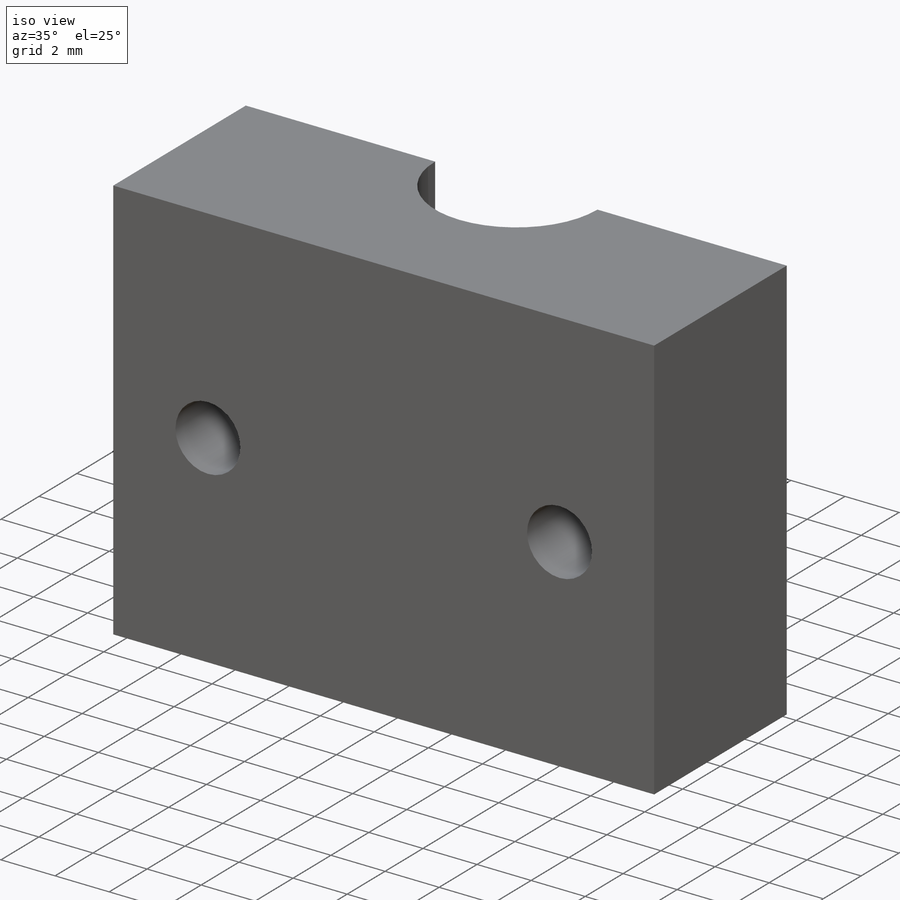
[diagram: iso view]
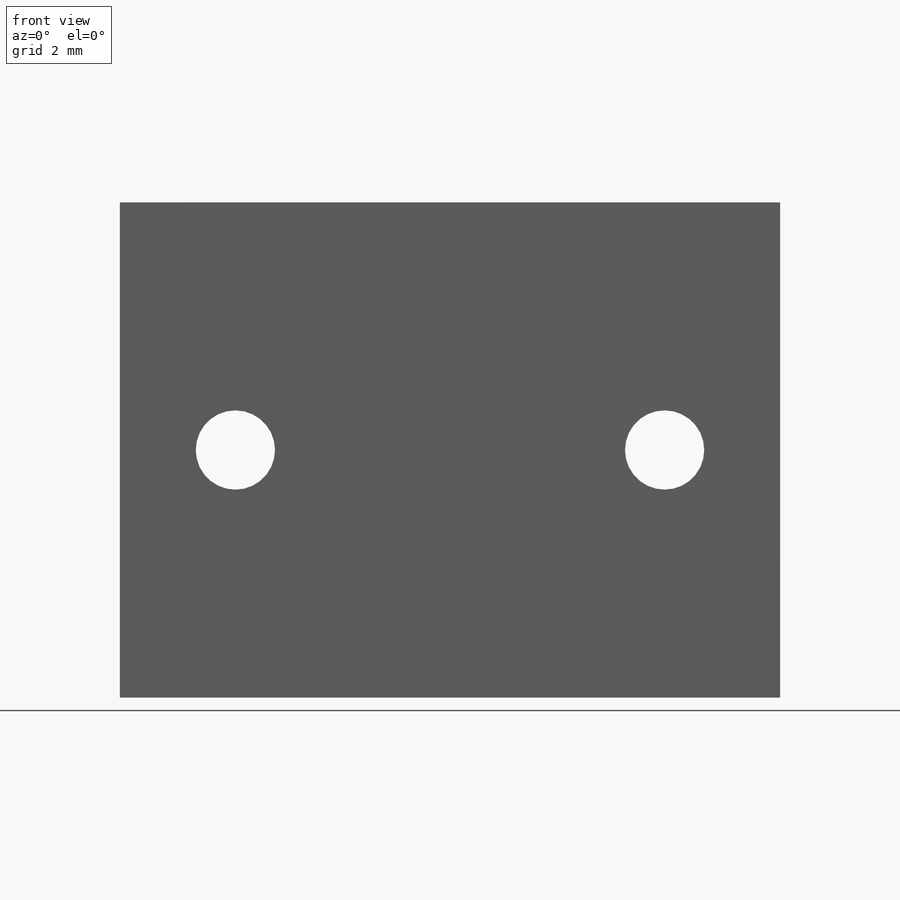
[diagram: front view]
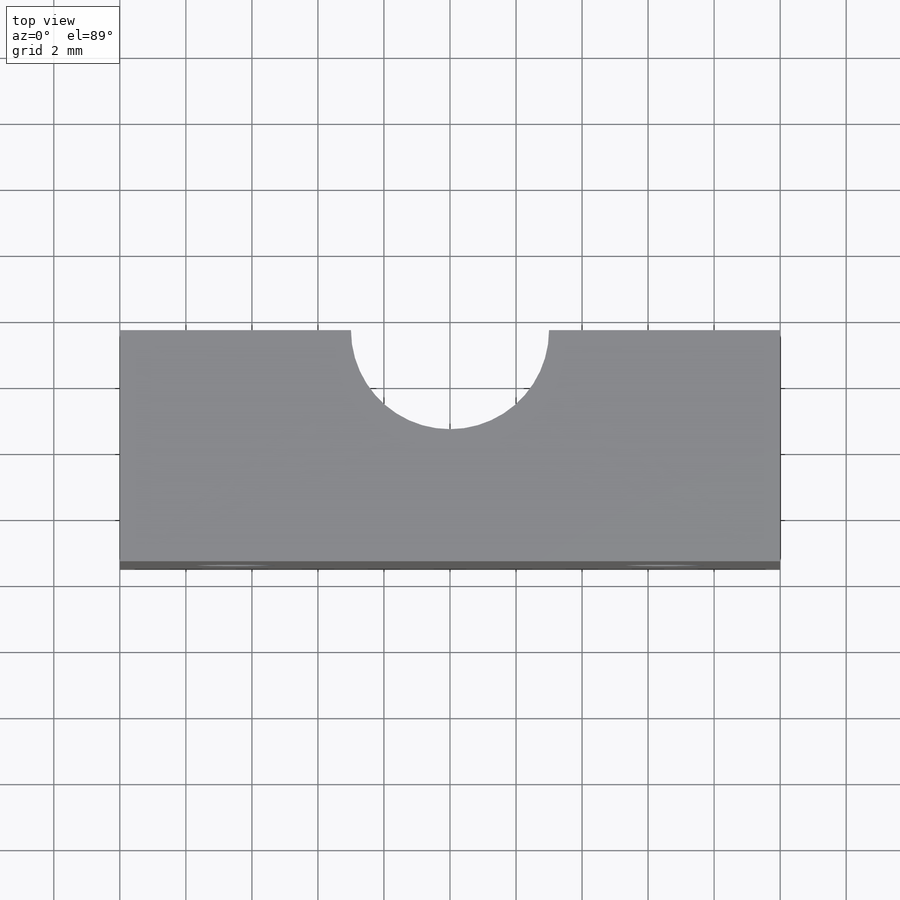
[diagram: top view]
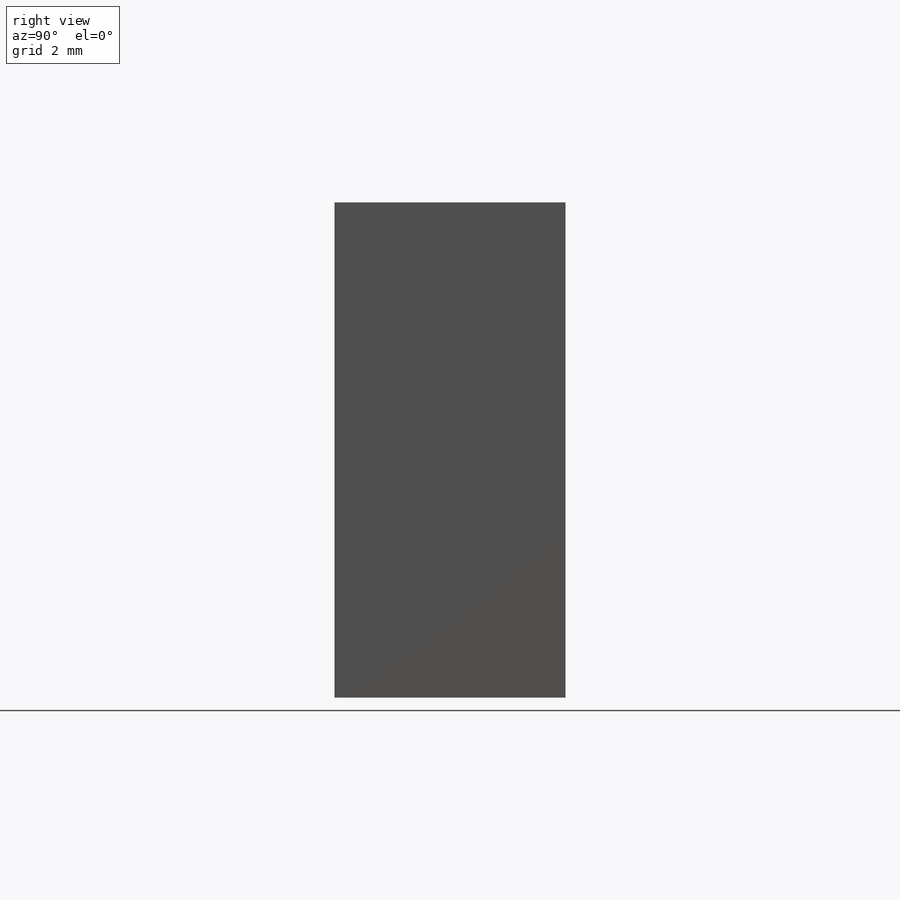
[diagram: right view]
SOLIDWORKS PART (.sldprt)
format: sldprt  version: not decoded by parser v0  size: 213,504 bytes
history: native  units: mm
features: sketch x3, cut_extrude x2, thread x2, material x1, extrude x1 (+12 scaffold rows collapsed)
feature tree (21):
  scaffold x12  (default folders/planes/origin — collapsed)
  material  "Náilon 6/10"
  sketch  "Sketch1"  dims[D1=20.0mm D2=15.0mm]
  extrude  "Extrude1"  Depth=7mm
  sketch  "Sketch2"  dims[D1=6.0mm]
  cut_extrude  "Cut-Extrude1"  [1 undecoded]
  sketch  "Sketch3"  dims[c1.D1=2.4mm c1.D2=2.4mm c1.D3=2.4mm c1.D4=2.4mm c1.D5=2.4mm c1.D6=2.4mm c2.D3=6.5mm c2.D4=13.0mm c2.D5=7.5mm c2.D6=7.5mm]
  cut_extrude  "Cut-Extrude2"  [1 undecoded]
  thread  "Cosmetic Thread1"  Diameter=3mm  [1 undecoded]
  thread  "Cosmetic Thread2"  Diameter=3mm  [1 undecoded]
decode coverage: 6 of 8 modeling features carry decoded parameters
note: 4 parameter values undecoded
note: suppression state not decoded; provenance and decode notes live in map.json
